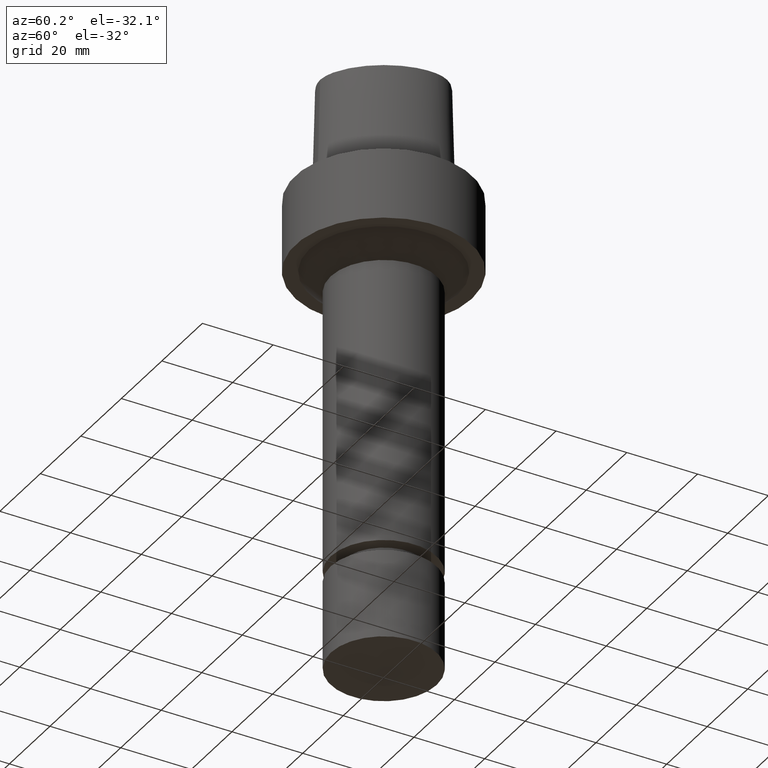
[diagram: clean part render]
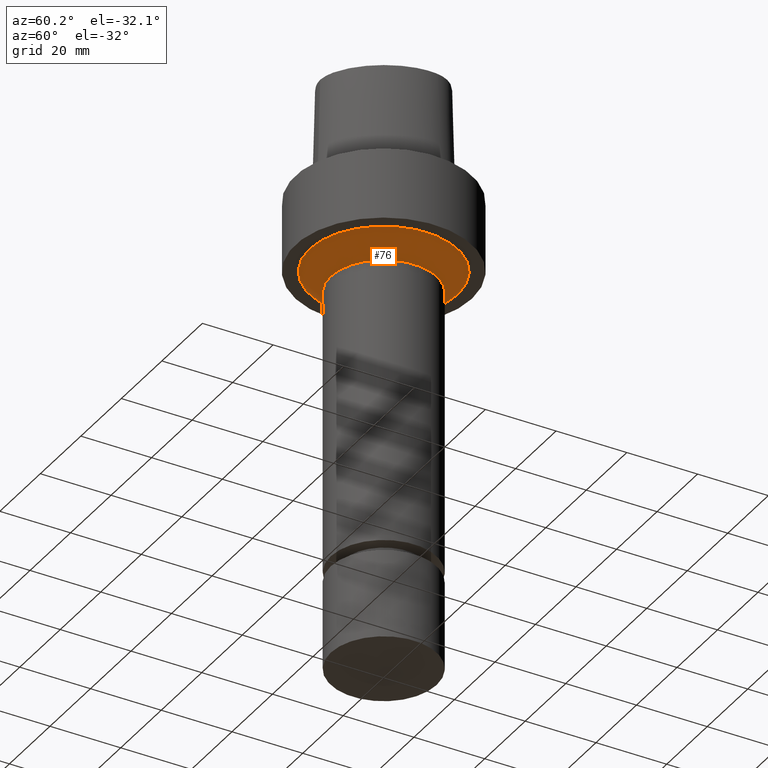
[diagram: same view with one face highlighted and labeled with its STEP entity id]
A machine part, auxiliary view. The second image highlights one B-rep face of the part: STEP entity #76.
In plain terms, the highlighted conical surface has half-angle 45 deg.
Its self-contained STEP definition (entity closure, byte-faithful):
#76=ADVANCED_FACE('Unnamed[1]',(#183,#184),#185,.T.);
#96=EDGE_CURVE('Unnamed[1]',#214,#214,#215,.T.);
#125=EDGE_CURVE('Unnamed[1]',#257,#257,#258,.T.);
#183=FACE_BOUND('',#322,.T.);
#184=FACE_BOUND('',#323,.T.);
#185=CONICAL_SURFACE('',#324,18.0000000000002,0.785398163397447);
#214=VERTEX_POINT('',#888);
#215=CIRCLE('',#889,15.0000000000003);
#257=VERTEX_POINT('',#944);
#258=CIRCLE('',#945,21.0000000000002);
#322=EDGE_LOOP('',(#1004));
#323=EDGE_LOOP('',(#1005));
#324=AXIS2_PLACEMENT_3D('',#1006,#1007,#1008);
#888=CARTESIAN_POINT('',(1.59204083889156E-015,15.0000000000003,-26.0));
#889=AXIS2_PLACEMENT_3D('',#1032,#1033,#1034);
#944=CARTESIAN_POINT('',(1.22464679914735E-015,21.0000000000003,-20.0));
#945=AXIS2_PLACEMENT_3D('',#1077,#1078,#1079);
#1004=ORIENTED_EDGE('',*,*,#96,.F.);
#1005=ORIENTED_EDGE('',*,*,#125,.T.);
#1006=CARTESIAN_POINT('',(1.40834381901946E-015,2.81668763803891E-015,-23.0));
#1007=DIRECTION('',(-6.12323399573676E-017,-1.22464679914735E-016,1.0));
#1008=DIRECTION('',(-1.23259516440783E-032,1.0,1.22464679914735E-016));
#1032=CARTESIAN_POINT('',(1.59204083889156E-015,3.18408167778312E-015,-26.0));
#1033=DIRECTION('',(6.12323399573677E-017,1.22464679914735E-016,-1.0));
#1034=DIRECTION('',(-1.23259516440783E-032,1.0,1.22464679914735E-016));
#1077=CARTESIAN_POINT('',(1.22464679914735E-015,2.44929359829471E-015,-20.0));
#1078=DIRECTION('',(6.12323399573676E-017,1.22464679914735E-016,-1.0));
#1079=DIRECTION('',(-1.23259516440783E-032,1.0,1.22464679914735E-016));